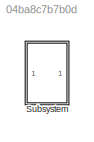
MODEL slx_04ba8c7b7b0d
KIND model
CONFIG AbsTol = auto
CONFIG EnableMultiTasking = off
CONFIG FixedStep = auto
CONFIG MaxStep = 1/32
CONFIG MinStep = auto
CONFIG RelTol = 1e-3
CONFIG SampleTimeConstraint = Unconstrained
CONFIG SolverName = ode45
CONFIG StartTime = 0.0
CONFIG StopTime = 15
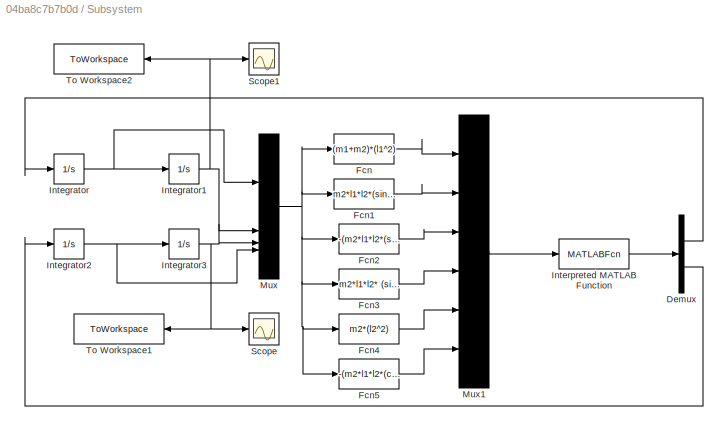
BLOCK [SubSystem] Subsystem
BLOCK [Demux] Subsystem/Demux
  Outputs = 2
BLOCK [Fcn] Subsystem/Fcn
  Expr = (m1+m2)*(l1^2)
BLOCK [Fcn] Subsystem/Fcn1
  Expr = m2*l1*l2*(sin(u(2)) * sin(u(3)) + cos(u(2)) * cos(u(3) ))
BLOCK [Fcn] Subsystem/Fcn2
  Expr = -(m2*l1*l2*(sin(u(2))*cos(u(3))-cos(u(2))*sin(u(3)))*u(4)^2+(m1+m2)*g*l1*sin(u(2))+k1*l1^2*u(1)+k2*l1*l2*(sin(u(2))*sin(u(3))+cos(u(2))*cos(u(3)))*u(4))
BLOCK [Fcn] Subsystem/Fcn3
  Expr = m2*l1*l2* (sin(u(2)) * sin(u(3)) + cos(u(2)) * cos(u(3)))
BLOCK [Fcn] Subsystem/Fcn4
  Expr = m2*(l2^2)
BLOCK [Fcn] Subsystem/Fcn5
  Expr = -(m2*l1*l2*(cos(u(2))*sin(u(3))-sin(u(2))*cos(u(3)))*u(1)^2+m2*g*l2*sin(u(3))+k2*l2^2*u(4)+k2*l1*l2*(sin(u(2))*sin(u(3))+cos(u(2))*cos(u(3)))*u(1))
BLOCK [Integrator] Subsystem/Integrator
  InitialCondition = (fi_1_prim*pi)/180
BLOCK [Integrator] Subsystem/Integrator1
  InitialCondition = (fi1*pi)/180
BLOCK [Integrator] Subsystem/Integrator2
  InitialCondition = (fi_2_prim*pi)/180
BLOCK [Integrator] Subsystem/Integrator3
  InitialCondition = (fi2*pi)/180
BLOCK [MATLABFcn] Subsystem/Interpreted MATLAB Function
  MATLABFcn = [u(1), u(2); u(4), u(5)] \ [u(3); u(6)]
BLOCK [Mux] Subsystem/Mux
  DisplayOption = bar
BLOCK [Mux] Subsystem/Mux1
  DisplayOption = bar
  Inputs = 6
BLOCK [Scope] Subsystem/Scope
  Floating = off
  NumInputPorts = 1
  ScopeSpecificationString = Simulink.scopes.TimeScopeBlockCfg('CurrentConfiguration', extmgr.ConfigurationSet(extmgr.Configuration('Core','General UI',true),extmgr.Configuration('Core','Source UI',true),extmgr.Configuration('Sources','WiredSimulink',true),extmgr.Configuration('Visuals','Time Domain',true,'SerializedDisplays',{struct('MinYLimReal','-1.33482','MaxYLimReal','3.0572','YLabelReal','','MinYLimMag','0.00000','MaxYL...<+1445ch>
BLOCK [Scope] Subsystem/Scope1
  Floating = off
  NumInputPorts = 1
  ScopeSpecificationString = Simulink.scopes.TimeScopeBlockCfg('CurrentConfiguration', extmgr.ConfigurationSet(extmgr.Configuration('Core','General UI',true),extmgr.Configuration('Core','Source UI',true),extmgr.Configuration('Sources','WiredSimulink',true,'DataLoggingVariableName','ScopeData1'),extmgr.Configuration('Visuals','Time Domain',true,'SerializedDisplays',{struct('MinYLimReal','-1.96132','MaxYLimReal','1.76933','YLab...<+1488ch>
BLOCK [ToWorkspace] Subsystem/To Workspace1
  FixptAsFi = on
  MaxDataPoints = inf
  NameLocation = top
  SampleTime = -1
  VariableName = phi_2
BLOCK [ToWorkspace] Subsystem/To Workspace2
  FixptAsFi = on
  MaxDataPoints = inf
  NameLocation = top
  SampleTime = -1
  VariableName = phi_1
LINE Subsystem/Demux:1 -> Subsystem/Integrator:1
LINE Subsystem/Demux:2 -> Subsystem/Integrator2:1
LINE Subsystem/Fcn1:1 -> Subsystem/Mux1:2
LINE Subsystem/Fcn2:1 -> Subsystem/Mux1:3
LINE Subsystem/Fcn3:1 -> Subsystem/Mux1:4
LINE Subsystem/Fcn4:1 -> Subsystem/Mux1:5
LINE Subsystem/Fcn5:1 -> Subsystem/Mux1:6
LINE Subsystem/Fcn:1 -> Subsystem/Mux1:1
NET Subsystem/Integrator1:1 -> Subsystem/Mux:2, Subsystem/Scope1:1, Subsystem/To Workspace2:1
NET Subsystem/Integrator2:1 -> Subsystem/Integrator3:1, Subsystem/Mux:4
NET Subsystem/Integrator3:1 -> Subsystem/Mux:3, Subsystem/Scope:1, Subsystem/To Workspace1:1
NET Subsystem/Integrator:1 -> Subsystem/Integrator1:1, Subsystem/Mux:1
LINE Subsystem/Interpreted MATLAB Function:1 -> Subsystem/Demux:1
LINE Subsystem/Mux1:1 -> Subsystem/Interpreted MATLAB Function:1
NET Subsystem/Mux:1 -> Subsystem/Fcn1:1, Subsystem/Fcn2:1, Subsystem/Fcn3:1, Subsystem/Fcn4:1, Subsystem/Fcn5:1, Subsystem/Fcn:1
note: NET lines group one-source signal fan-out (src -> all destinations, sorted); 1:1 wires keep LINE
